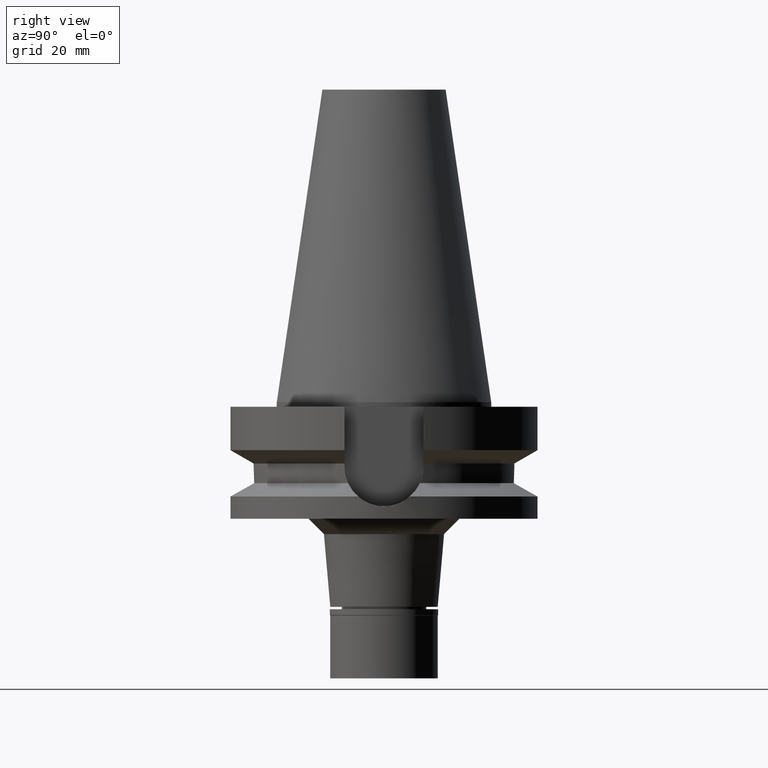
[diagram: clean part render]
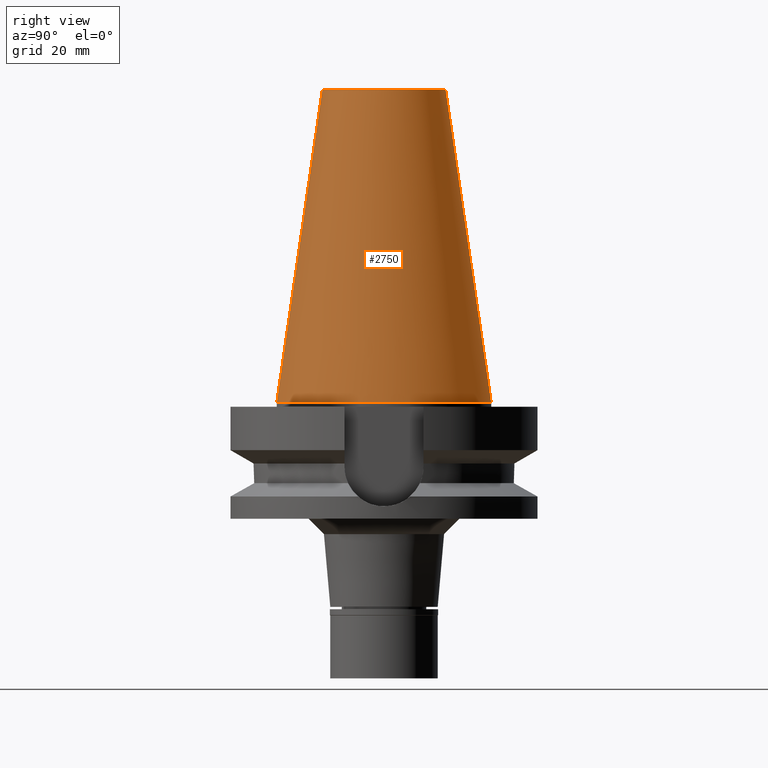
[diagram: same view with one face highlighted and labeled with its STEP entity id]
A machine part, right view. The second image highlights one B-rep face of the part: STEP entity #2750.
In plain terms, the highlighted conical surface has half-angle 8.297 deg.
Its self-contained STEP definition (entity closure, byte-faithful):
#123 = VERTEX_POINT ( 'NONE', #900 ) ;
#141 = DIRECTION ( 'NONE',  ( 0.0000000000000000000, 0.1443043893538948075, -0.9895333461855641000 ) ) ;
#159 = DIRECTION ( 'NONE',  ( 0.0000000000000000000, 1.000000000000000000, 0.0000000000000000000 ) ) ;
#165 = CARTESIAN_POINT ( 'NONE',  ( 0.0000000000000000000, 20.07942971896000017, 101.7999999999999972 ) ) ;
#176 = EDGE_CURVE ( 'NONE', #123, #617, #2100, .T. ) ;
#311 = DIRECTION ( 'NONE',  ( 0.0000000000000000000, 0.0000000000000000000, -1.000000000000000000 ) ) ;
#325 = DIRECTION ( 'NONE',  ( 0.0000000000000000000, -1.000000000000000000, 0.0000000000000000000 ) ) ;
#366 = EDGE_CURVE ( 'NONE', #1022, #123, #448, .T. ) ;
#375 = CONICAL_SURFACE ( 'NONE', #763, 27.50221485948000222, 0.1448099680379422438 ) ;
#399 = ORIENTED_EDGE ( 'NONE', *, *, #2256, .F. ) ;
#405 = CARTESIAN_POINT ( 'NONE',  ( 0.0000000000000000000, -20.07942971896000017, 101.7999999999999972 ) ) ;
#448 = CIRCLE ( 'NONE', #1847, 20.07942971896000017 ) ;
#495 = FACE_OUTER_BOUND ( 'NONE', #678, .T. ) ;
#577 = ORIENTED_EDGE ( 'NONE', *, *, #176, .T. ) ;
#617 = VERTEX_POINT ( 'NONE', #3087 ) ;
#678 = EDGE_LOOP ( 'NONE', ( #1271, #577, #1850, #399 ) ) ;
#763 = AXIS2_PLACEMENT_3D ( 'NONE', #2658, #311, #325 ) ;
#900 = CARTESIAN_POINT ( 'NONE',  ( 0.0000000000000000000, -20.07942971896000017, 101.7999999999999972 ) ) ;
#1022 = VERTEX_POINT ( 'NONE', #165 ) ;
#1144 = DIRECTION ( 'NONE',  ( 0.0000000000000000000, -0.1443043893538948075, -0.9895333461855641000 ) ) ;
#1271 = ORIENTED_EDGE ( 'NONE', *, *, #366, .T. ) ;
#1385 = VERTEX_POINT ( 'NONE', #2551 ) ;
#1461 = EDGE_CURVE ( 'NONE', #1385, #617, #2758, .T. ) ;
#1554 = CARTESIAN_POINT ( 'NONE',  ( 0.0000000000000000000, 20.07942971896000017, 101.7999999999999972 ) ) ;
#1568 = LINE ( 'NONE', #1554, #2922 ) ;
#1586 = VECTOR ( 'NONE', #1144, 1000.000000000000114 ) ;
#1632 = AXIS2_PLACEMENT_3D ( 'NONE', #2534, #2970, #159 ) ;
#1847 = AXIS2_PLACEMENT_3D ( 'NONE', #2980, #2211, #1982 ) ;
#1850 = ORIENTED_EDGE ( 'NONE', *, *, #1461, .F. ) ;
#1982 = DIRECTION ( 'NONE',  ( 0.0000000000000000000, 1.000000000000000000, 0.0000000000000000000 ) ) ;
#2100 = LINE ( 'NONE', #405, #1586 ) ;
#2211 = DIRECTION ( 'NONE',  ( 0.0000000000000000000, 0.0000000000000000000, -1.000000000000000000 ) ) ;
#2256 = EDGE_CURVE ( 'NONE', #1022, #1385, #1568, .T. ) ;
#2534 = CARTESIAN_POINT ( 'NONE',  ( 0.0000000000000000000, 1.847992019912999597E-14, 3.979039320256999774E-13 ) ) ;
#2551 = CARTESIAN_POINT ( 'NONE',  ( 0.0000000000000000000, 34.92499999999999716, 3.481659405224000176E-13 ) ) ;
#2658 = CARTESIAN_POINT ( 'NONE',  ( 0.0000000000000000000, 1.847992019912999597E-14, 50.89999999999999858 ) ) ;
#2750 = ADVANCED_FACE ( 'NONE', ( #495 ), #375, .T. ) ;
#2758 = CIRCLE ( 'NONE', #1632, 34.92499999999999716 ) ;
#2922 = VECTOR ( 'NONE', #141, 1000.000000000000114 ) ;
#2970 = DIRECTION ( 'NONE',  ( 0.0000000000000000000, 0.0000000000000000000, -1.000000000000000000 ) ) ;
#2980 = CARTESIAN_POINT ( 'NONE',  ( 0.0000000000000000000, 1.847992019912999597E-14, 101.7999999999999972 ) ) ;
#3087 = CARTESIAN_POINT ( 'NONE',  ( 0.0000000000000000000, -34.92499999999999716, 3.481659405224000176E-13 ) ) ;